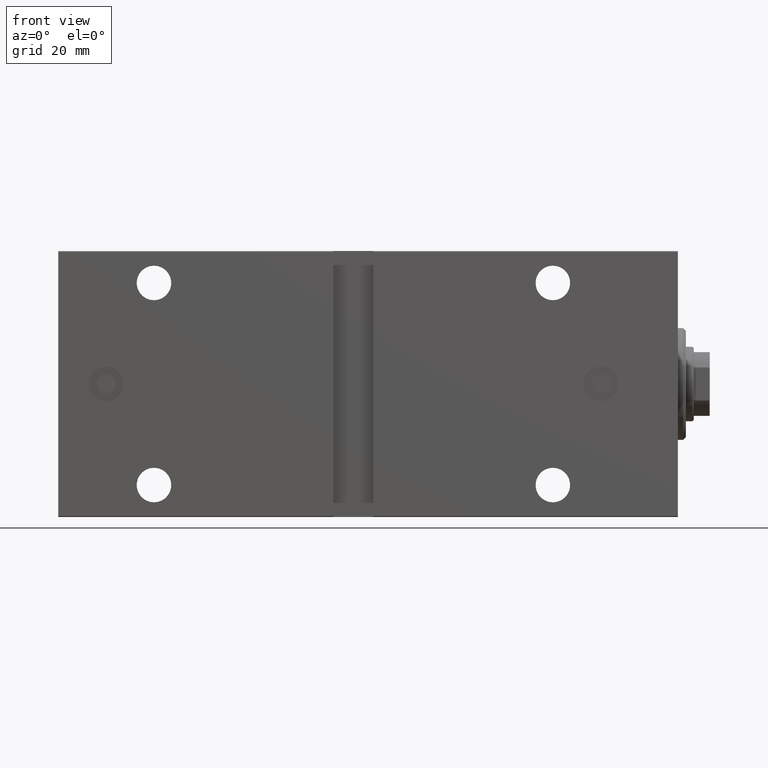
[diagram: clean part render]
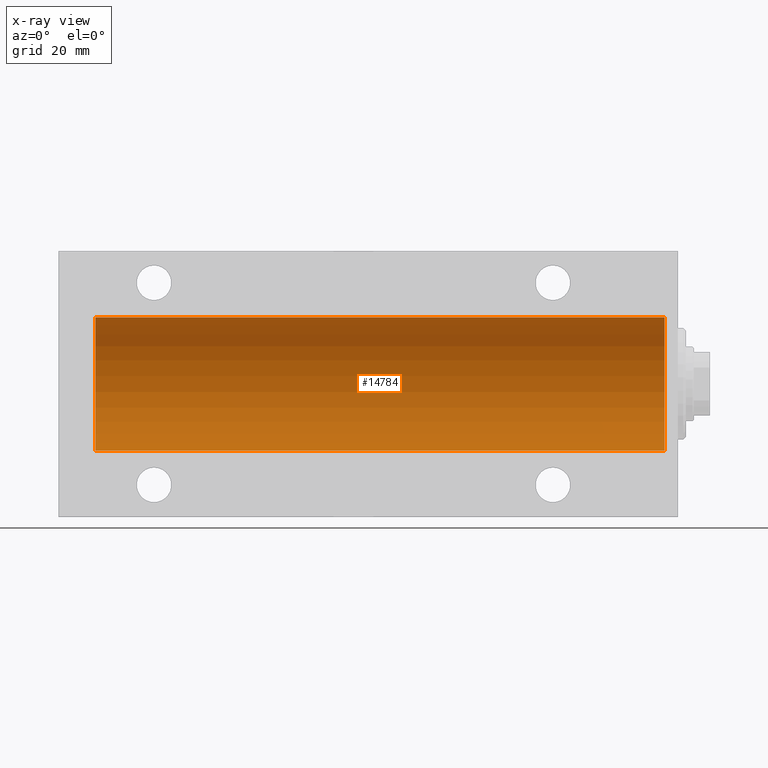
[diagram: x-ray — body ghosted, one internal face saturated and labeled with its STEP entity id]
A machine part, front view, then the same camera in x-ray: the body is ghosted and one INTERNAL B-rep face — a face not visible from any outside direction — is saturated and labeled: STEP entity #14784.
In plain terms, the highlighted cylindrical surface (partial cylindrical patch) has radius 25 mm, axis along (1, 0, -0).
Its self-contained STEP definition (entity closure, byte-faithful):
#413 = CARTESIAN_POINT ( 'NONE',  ( 219.0000000000000000, 0.000000000000000000, 0.000000000000000000 ) ) ;
#1981 = CIRCLE ( 'NONE', #25482, 25.00000000000000000 ) ;
#1996 = ORIENTED_EDGE ( 'NONE', *, *, #16924, .F. ) ;
#2319 = LINE ( 'NONE', #3779, #42161 ) ;
#2331 = ORIENTED_EDGE ( 'NONE', *, *, #14961, .T. ) ;
#3448 = DIRECTION ( 'NONE',  ( 0.000000000000000000, 0.000000000000000000, 1.000000000000000000 ) ) ;
#3779 = CARTESIAN_POINT ( 'NONE',  ( 219.0000000000000000, 0.000000000000000000, 25.00000000000000000 ) ) ;
#7464 = CARTESIAN_POINT ( 'NONE',  ( 219.0000000000000000, 3.061616997868383043E-15, -25.00000000000000000 ) ) ;
#7800 = VERTEX_POINT ( 'NONE', #22422 ) ;
#8585 = DIRECTION ( 'NONE',  ( -1.000000000000000000, 0.000000000000000000, 0.000000000000000000 ) ) ;
#10836 = VERTEX_POINT ( 'NONE', #20068 ) ;
#11508 = CARTESIAN_POINT ( 'NONE',  ( 5.000000000000004441, 3.061616997868383043E-15, -25.00000000000000000 ) ) ;
#13651 = DIRECTION ( 'NONE',  ( 0.000000000000000000, 0.000000000000000000, 1.000000000000000000 ) ) ;
#13978 = DIRECTION ( 'NONE',  ( -1.000000000000000000, -0.000000000000000000, -0.000000000000000000 ) ) ;
#14254 = EDGE_LOOP ( 'NONE', ( #18983, #36818, #2331, #1996 ) ) ;
#14784 = ADVANCED_FACE ( 'NONE', ( #17543 ), #30762, .F. ) ;
#14890 = DIRECTION ( 'NONE',  ( 0.000000000000000000, 0.000000000000000000, 1.000000000000000000 ) ) ;
#14961 = EDGE_CURVE ( 'NONE', #16482, #16845, #1981, .T. ) ;
#16482 = VERTEX_POINT ( 'NONE', #11508 ) ;
#16535 = EDGE_CURVE ( 'NONE', #7800, #10836, #29706, .T. ) ;
#16845 = VERTEX_POINT ( 'NONE', #31186 ) ;
#16924 = EDGE_CURVE ( 'NONE', #10836, #16845, #2319, .T. ) ;
#17543 = FACE_OUTER_BOUND ( 'NONE', #14254, .T. ) ;
#17642 = DIRECTION ( 'NONE',  ( -1.000000000000000000, -0.000000000000000000, -0.000000000000000000 ) ) ;
#18983 = ORIENTED_EDGE ( 'NONE', *, *, #16535, .F. ) ;
#20068 = CARTESIAN_POINT ( 'NONE',  ( 219.0000000000000000, 0.000000000000000000, 25.00000000000000000 ) ) ;
#22422 = CARTESIAN_POINT ( 'NONE',  ( 219.0000000000000000, 3.061616997868383043E-15, -25.00000000000000000 ) ) ;
#22511 = DIRECTION ( 'NONE',  ( -1.000000000000000000, 0.000000000000000000, 0.000000000000000000 ) ) ;
#24465 = DIRECTION ( 'NONE',  ( -1.000000000000000000, -0.000000000000000000, -0.000000000000000000 ) ) ;
#25482 = AXIS2_PLACEMENT_3D ( 'NONE', #41343, #8585, #14890 ) ;
#25661 = EDGE_CURVE ( 'NONE', #7800, #16482, #40649, .T. ) ;
#29706 = CIRCLE ( 'NONE', #36625, 25.00000000000000000 ) ;
#29922 = VECTOR ( 'NONE', #13978, 1000.000000000000000 ) ;
#30762 = CYLINDRICAL_SURFACE ( 'NONE', #42135, 25.00000000000000000 ) ;
#31186 = CARTESIAN_POINT ( 'NONE',  ( 5.000000000000004441, 0.000000000000000000, 25.00000000000000000 ) ) ;
#36194 = CARTESIAN_POINT ( 'NONE',  ( 219.0000000000000000, 0.000000000000000000, 0.000000000000000000 ) ) ;
#36625 = AXIS2_PLACEMENT_3D ( 'NONE', #36194, #22511, #3448 ) ;
#36818 = ORIENTED_EDGE ( 'NONE', *, *, #25661, .T. ) ;
#40649 = LINE ( 'NONE', #7464, #29922 ) ;
#41343 = CARTESIAN_POINT ( 'NONE',  ( 5.000000000000004441, 0.000000000000000000, 0.000000000000000000 ) ) ;
#42135 = AXIS2_PLACEMENT_3D ( 'NONE', #413, #24465, #13651 ) ;
#42161 = VECTOR ( 'NONE', #17642, 1000.000000000000000 ) ;